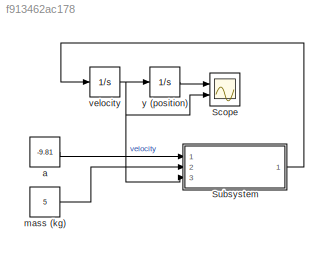
MODEL slx_f913462ac178
KIND model
CONFIG AbsTol = auto
CONFIG EnableMultiTasking = off
CONFIG FixedStep = auto
CONFIG MaxStep = auto
CONFIG MinStep = auto
CONFIG RelTol = 1e-3
CONFIG SampleTimeConstraint = Unconstrained
CONFIG SolverName = VariableStepAuto
CONFIG StartTime = 0.0
CONFIG StopTime = 20
BLOCK [Scope] Scope
  Floating = off
  NumInputPorts = 2
  Ports = [2]
  ScopeSpecificationString = Simulink.scopes.TimeScopeBlockCfg('CurrentConfiguration', extmgr.ConfigurationSet(extmgr.Configuration('Core','General UI',true),extmgr.Configuration('Core','Source UI',true),extmgr.Configuration('Sources','WiredSimulink',true),extmgr.Configuration('Visuals','Time Domain',true,'SerializedDisplays',{struct('MinYLimReal','-919.41542','MaxYLimReal','102.15727','YLabelReal','','MinYLimMag',' 0.00000',...<+2015ch>
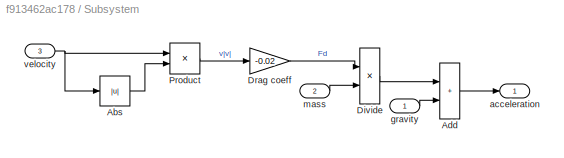
BLOCK [SubSystem] Subsystem
  Ports = [3, 1]
  RequestExecContextInheritance = off
BLOCK [Abs] Subsystem/Abs
  SaturateOnIntegerOverflow = off
BLOCK [Sum] Subsystem/Add
  IconShape = rectangular
  Ports = [2, 1]
BLOCK [Product] Subsystem/Divide
  Inputs = */
  Ports = [2, 1]
BLOCK [Gain] Subsystem/Drag coeff
  Gain = -0.02
BLOCK [Product] Subsystem/Product
  Ports = [2, 1]
BLOCK [Outport] Subsystem/acceleration
BLOCK [Inport] Subsystem/gravity
BLOCK [Inport] Subsystem/mass
  Port = 2
BLOCK [Inport] Subsystem/velocity
  Port = 3
BLOCK [Constant] a
  Value = -9.81
BLOCK [Constant] mass (kg)
  Value = 5
BLOCK [Integrator] velocity
  Ports = [1, 1]
BLOCK [Integrator] y (position)
  Ports = [1, 1]
LINE Subsystem/Abs:1 -> Subsystem/Product:2
LINE Subsystem/Add:1 -> Subsystem/acceleration:1
LINE Subsystem/Divide:1 -> Subsystem/Add:1
LINE Subsystem/Drag coeff:1 -> Subsystem/Divide:1
LINE Subsystem/Product:1 -> Subsystem/Drag coeff:1
LINE Subsystem/gravity:1 -> Subsystem/Add:2
LINE Subsystem/mass:1 -> Subsystem/Divide:2
NET Subsystem/velocity:1 -> Subsystem/Abs:1, Subsystem/Product:1
LINE Subsystem:1 -> velocity:1
LINE a:1 -> Subsystem:1
LINE mass (kg):1 -> Subsystem:2
NET velocity:1 -> Scope:2, Subsystem:3, y (position):1
LINE y (position):1 -> Scope:1
note: NET lines group one-source signal fan-out (src -> all destinations, sorted); 1:1 wires keep LINE
